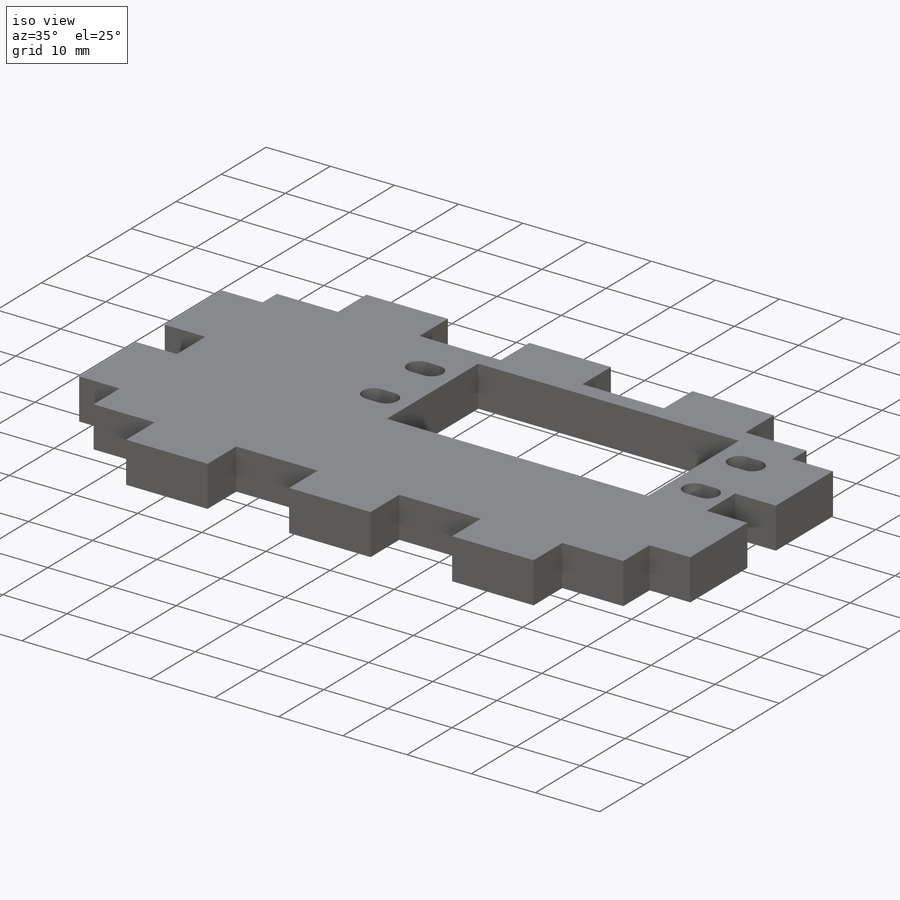
[diagram: iso view]
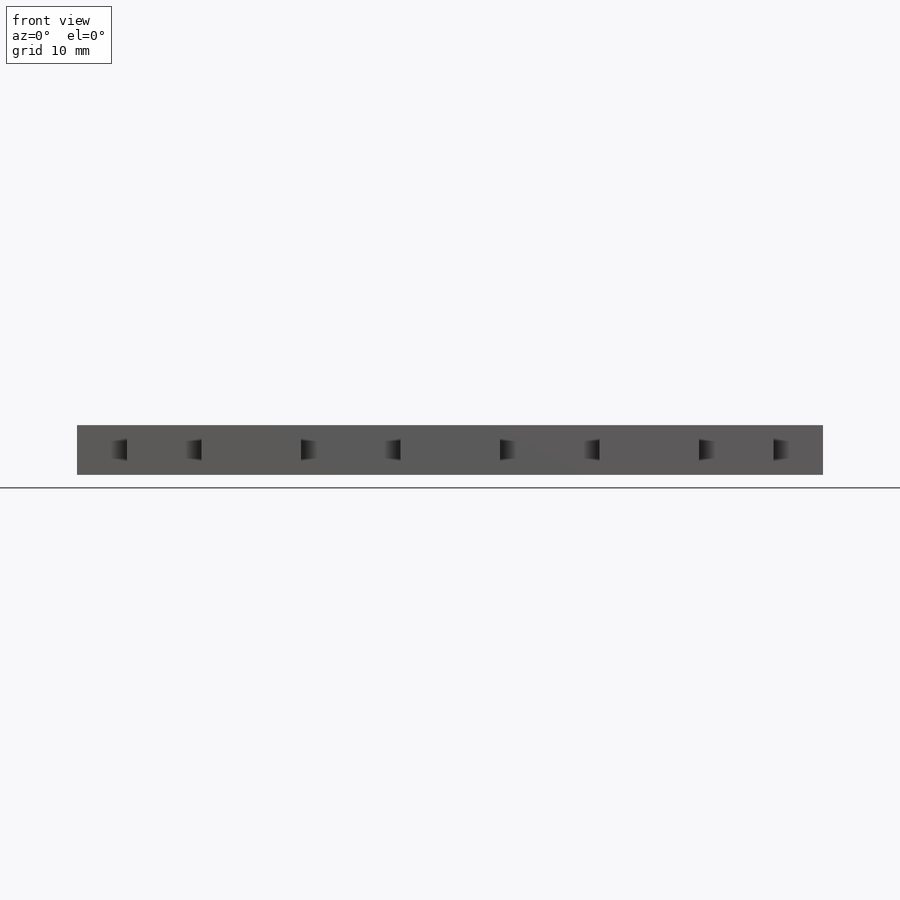
[diagram: front view]
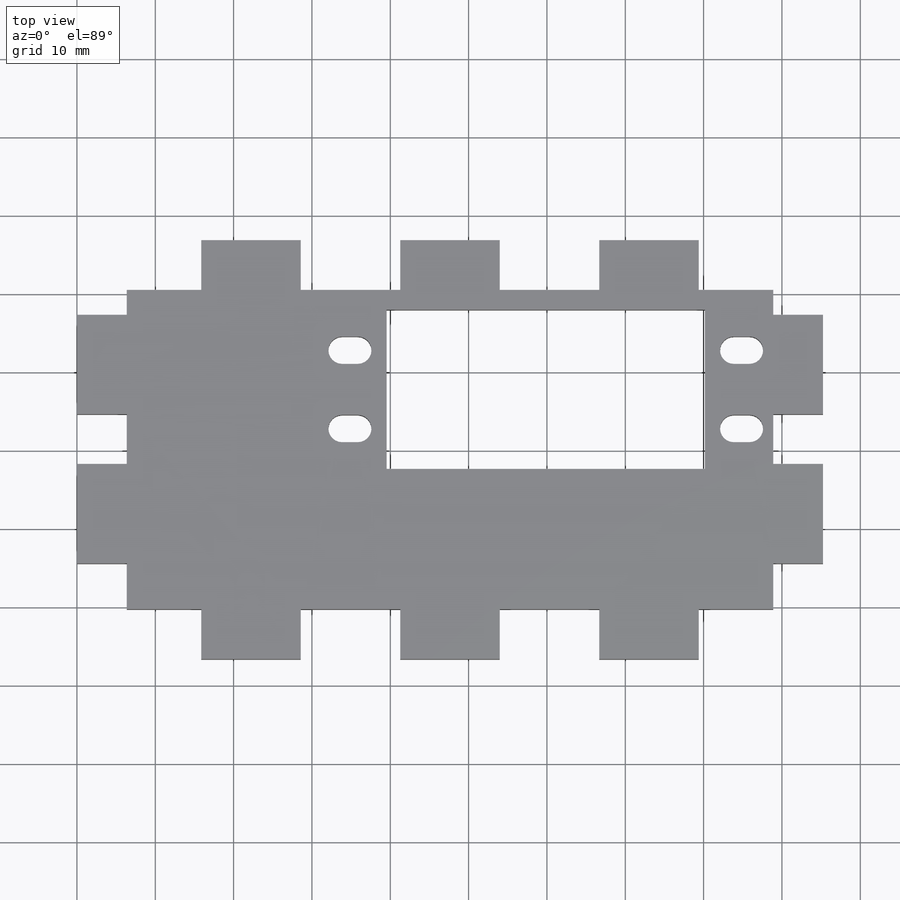
[diagram: top view]
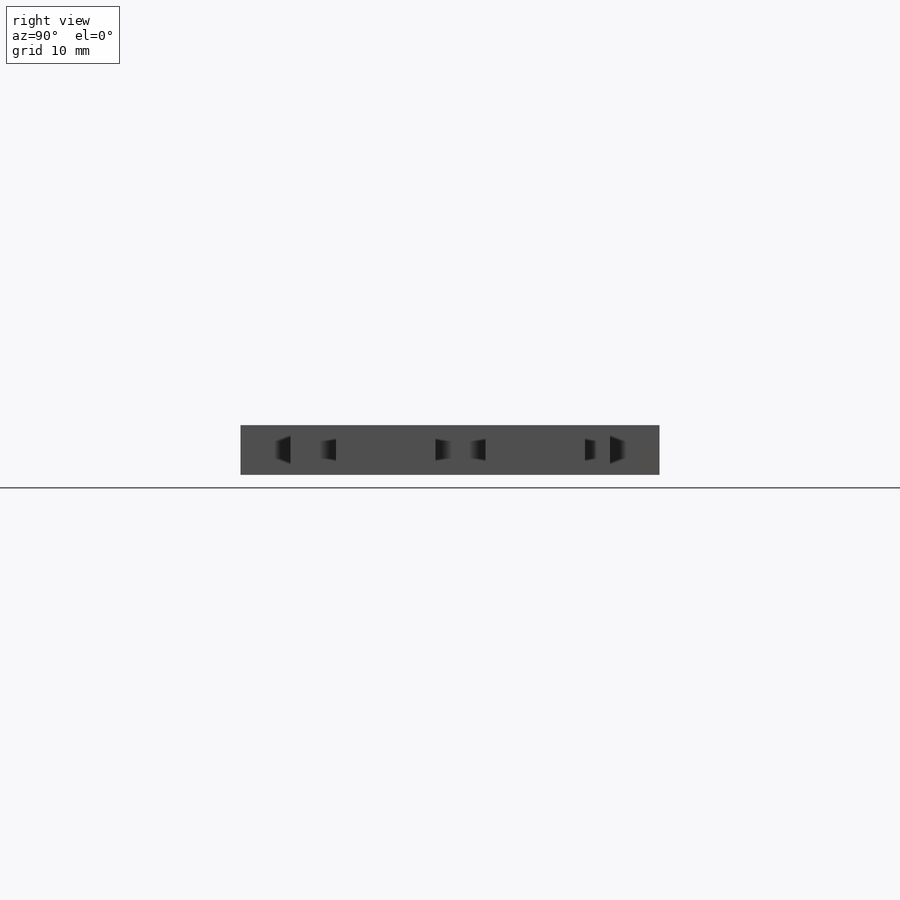
[diagram: right view]
SOLIDWORKS PART (.sldprt)
format: sldprt  version: not decoded by parser v0  size: 328,192 bytes
history: native  units: mm
features: sketch x5, cut_extrude x3, material x1, extrude x1, pattern_linear x1 (+13 scaffold rows collapsed)
feature tree (24):
  scaffold x13  (default folders/planes/origin — collapsed)
  material  "Pine"
  sketch  "Sketch1"  dims[D6=3.5mm D1=304.8mm D2=85.0deg D3=38.1mm D4=50.8mm D5=30.0deg D7=101.6mm D8=19.05mm D9=24.892mm D10=19.05mm D11=5.0deg D12=6.35mm D13=127.0mm D14=6.35mm D15=6.35mm D16=38.1mm]
  sketch  "Sketch2"  dims[D1=88.9mm D2=6.35mm D3=31.75mm]
  extrude  "Boss-Extrude1"  Depth=95.25mm
  sketch  "Sketch3"  dims[D1=9.525mm D2=6.35mm D3=6.35mm]
  cut_extrude  "Cut-Extrude1"  [1 undecoded]
  pattern_linear  "LPattern1"  Count1=3 Count2=1 Spacing1=19.05mm Spacing2=2.54mm
  sketch  "Sketch5"  dims[D1=12.7mm D2=12.7mm D3=12.7mm D4=12.7mm D5=6.35mm]
  cut_extrude  "Cut-Extrude2"  [1 undecoded]
  sketch  "Sketch7"  dims[c1.D6=1.75mm c1.D1=10.0mm c1.D2=48.0mm c1.D3=20.32mm c1.D4=40.64mm c1.D5=2.0mm c1.D7=14.0mm c1.D8=19.05mm c1.D9=12.7mm c2.D7=14.0mm c2.D8=19.05mm]
  cut_extrude  "Cut-Extrude4"  [1 undecoded]
decode coverage: 7 of 10 modeling features carry decoded parameters
note: 3 parameter values undecoded
summary: no parameter record found for 3 features
note: suppression state not decoded; provenance and decode notes live in map.json
